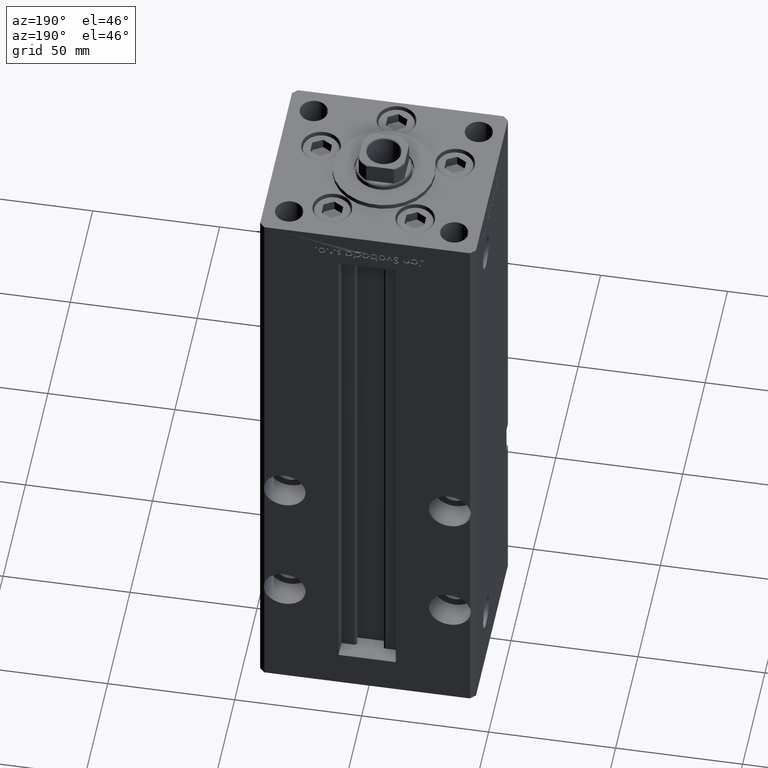
[diagram: clean part render]
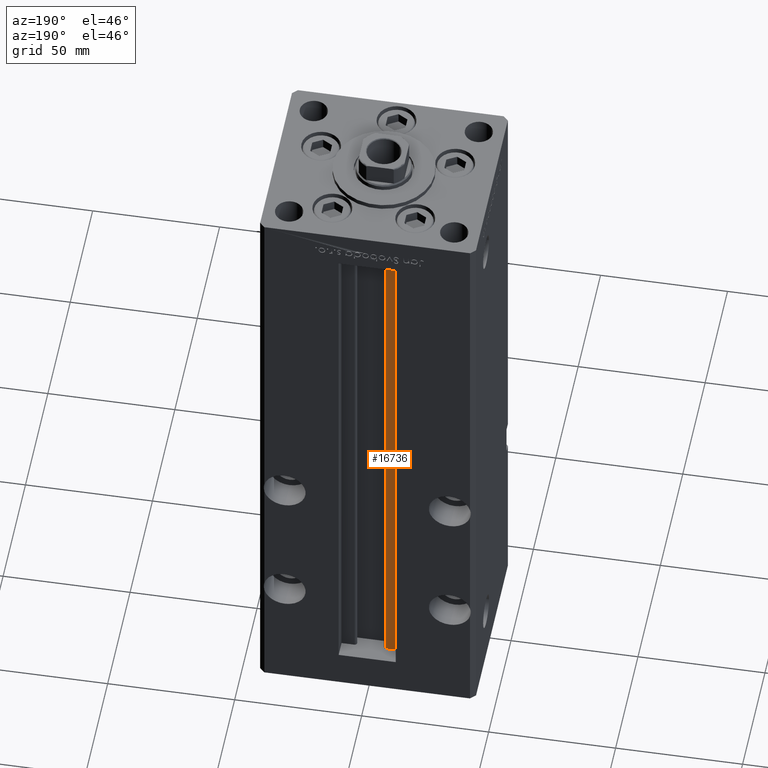
[diagram: same view with one face highlighted and labeled with its STEP entity id]
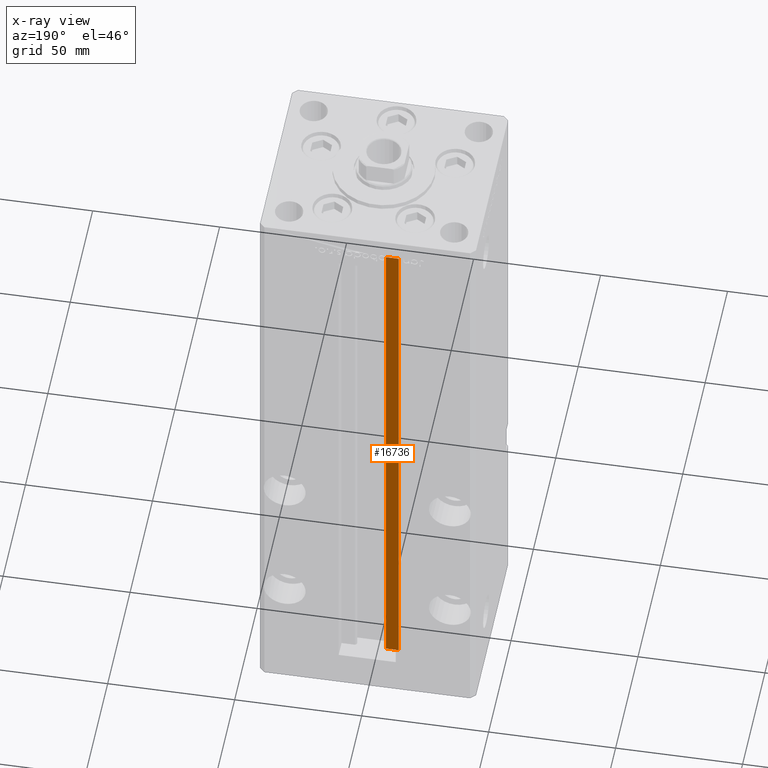
[diagram: x-ray of the same camera — body ghosted, the highlighted face saturated]
A machine part, auxiliary view. The second image highlights one B-rep face of the part: STEP entity #16736.
The next image is the same camera in x-ray: the body ghosted, the highlighted face saturated — about 0% of this face is hidden behind the body in this view.
In plain terms, the highlighted planar face has unit normal (0, -1, 0).
Its self-contained STEP definition (entity closure, byte-faithful):
#734 = VERTEX_POINT ( 'NONE', #44950 ) ;
#968 = CARTESIAN_POINT ( 'NONE',  ( -6.183333333333997928, 31.00000000000000000, 0.000000000000000000 ) ) ;
#1001 = VECTOR ( 'NONE', #31073, 1000.000000000000000 ) ;
#1148 = VERTEX_POINT ( 'NONE', #16901 ) ;
#2978 = DIRECTION ( 'NONE',  ( 1.000000000000000000, -0.000000000000000000, -0.000000000000000000 ) ) ;
#5043 = VECTOR ( 'NONE', #2978, 1000.000000000000000 ) ;
#5803 = DIRECTION ( 'NONE',  ( 0.000000000000000000, 0.000000000000000000, -1.000000000000000000 ) ) ;
#6285 = ORIENTED_EDGE ( 'NONE', *, *, #6503, .F. ) ;
#6503 = EDGE_CURVE ( 'NONE', #45767, #1148, #36198, .T. ) ;
#6970 = EDGE_CURVE ( 'NONE', #16191, #734, #14775, .T. ) ;
#10093 = FACE_OUTER_BOUND ( 'NONE', #34391, .T. ) ;
#12067 = CARTESIAN_POINT ( 'NONE',  ( -11.24999999999999822, 31.00000000000000000, 0.000000000000000000 ) ) ;
#14775 = LINE ( 'NONE', #35742, #5043 ) ;
#15027 = EDGE_CURVE ( 'NONE', #16191, #1148, #35112, .T. ) ;
#15904 = DIRECTION ( 'NONE',  ( -0.000000000000000000, -0.000000000000000000, 1.000000000000000000 ) ) ;
#16176 = ORIENTED_EDGE ( 'NONE', *, *, #15027, .T. ) ;
#16191 = VERTEX_POINT ( 'NONE', #12067 ) ;
#16736 = ADVANCED_FACE ( 'NONE', ( #10093 ), #38048, .F. ) ;
#16901 = CARTESIAN_POINT ( 'NONE',  ( -11.24999999999999822, 31.00000000000000000, 218.5000000000000000 ) ) ;
#17783 = ORIENTED_EDGE ( 'NONE', *, *, #6970, .F. ) ;
#17873 = DIRECTION ( 'NONE',  ( 0.000000000000000000, -1.000000000000000000, -0.000000000000000000 ) ) ;
#18133 = EDGE_CURVE ( 'NONE', #734, #45767, #20998, .T. ) ;
#20998 = LINE ( 'NONE', #28798, #32872 ) ;
#21355 = ORIENTED_EDGE ( 'NONE', *, *, #18133, .F. ) ;
#24614 = DIRECTION ( 'NONE',  ( -1.000000000000000000, 0.000000000000000000, 0.000000000000000000 ) ) ;
#28798 = CARTESIAN_POINT ( 'NONE',  ( -6.183333333333997928, 31.00000000000000000, 0.000000000000000000 ) ) ;
#31073 = DIRECTION ( 'NONE',  ( -0.000000000000000000, -0.000000000000000000, 1.000000000000000000 ) ) ;
#32828 = AXIS2_PLACEMENT_3D ( 'NONE', #968, #17873, #5803 ) ;
#32872 = VECTOR ( 'NONE', #15904, 1000.000000000000000 ) ;
#34391 = EDGE_LOOP ( 'NONE', ( #21355, #17783, #16176, #6285 ) ) ;
#35112 = LINE ( 'NONE', #51533, #1001 ) ;
#35742 = CARTESIAN_POINT ( 'NONE',  ( -6.183333333333997928, 31.00000000000000000, 0.000000000000000000 ) ) ;
#36198 = LINE ( 'NONE', #49096, #46236 ) ;
#37577 = CARTESIAN_POINT ( 'NONE',  ( -6.183333333333997928, 31.00000000000000000, 218.5000000000000000 ) ) ;
#38048 = PLANE ( 'NONE',  #32828 ) ;
#44950 = CARTESIAN_POINT ( 'NONE',  ( -6.183333333333997928, 31.00000000000000000, 0.000000000000000000 ) ) ;
#45767 = VERTEX_POINT ( 'NONE', #37577 ) ;
#46236 = VECTOR ( 'NONE', #24614, 1000.000000000000000 ) ;
#49096 = CARTESIAN_POINT ( 'NONE',  ( 0.000000000000000000, 31.00000000000000000, 218.5000000000000000 ) ) ;
#51533 = CARTESIAN_POINT ( 'NONE',  ( -11.24999999999999822, 31.00000000000000000, 0.000000000000000000 ) ) ;